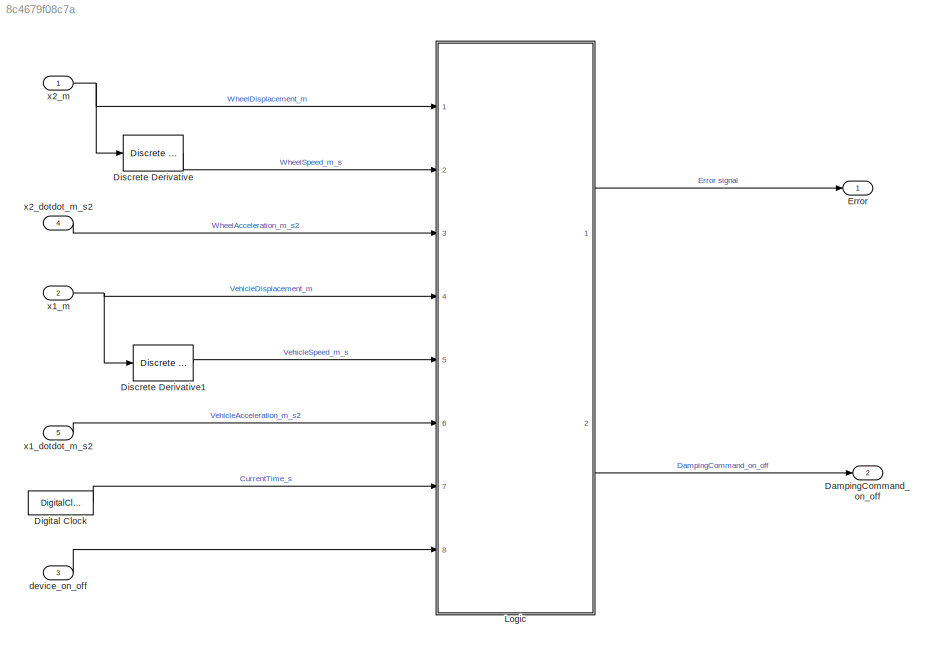
MODEL slx_8c4679f08c7a
KIND model
CONFIG AbsTol = auto
CONFIG EnableMultiTasking = off
CONFIG FixedStep = 1/1000
CONFIG MaxStep = auto
CONFIG MinStep = auto
CONFIG RelTol = 1e-3
CONFIG SampleTimeConstraint = Unconstrained
CONFIG SolverName = FixedStepAuto
CONFIG StartTime = 0.0
CONFIG StopTime = inf
BLOCK [Outport] DampingCommand_on_off
  OutDataTypeStr = int8
  Port = 2
BLOCK [DigitalClock] Digital Clock
  SampleTime = 1/100
BLOCK [Reference] Discrete Derivative  REF=simulink/Discrete/Discrete Derivative
  Ports = [1, 1]
  SourceBlock = simulink/Discrete/Discrete Derivative
  SourceProductBaseCode = SL
  SourceType = Discrete Derivative
BLOCK [Reference] Discrete Derivative1  REF=simulink/Discrete/Discrete Derivative
  Ports = [1, 1]
  SourceBlock = simulink/Discrete/Discrete Derivative
  SourceProductBaseCode = SL
  SourceType = Discrete Derivative
BLOCK [Outport] Error
  OutDataTypeStr = double
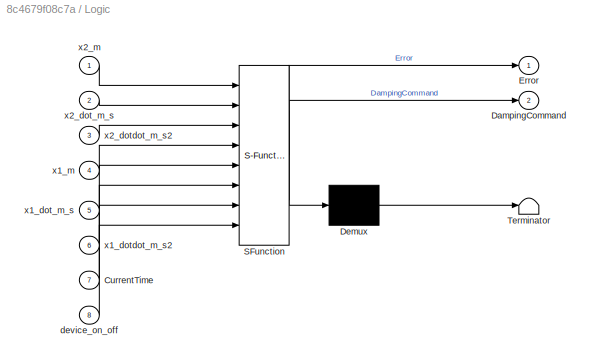
BLOCK [SubSystem] Logic
  ErrorFcn = Stateflow.Translate.translate
  PermitHierarchicalResolution = ExplicitOnly
  Ports = [8, 2]
  RequestExecContextInheritance = off
  SFBlockType = Chart
  TreatAsAtomicUnit = on
BLOCK [Demux] Logic/ Demux 
  Outputs = 1
  Ports = [1, 1]
BLOCK [S-Function] Logic/ SFunction 
  EnableBusSupport = on
  FunctionName = sf_sfun
  PortCounts = [8 3]
  Ports = [8, 3]
  SFcnIsStateOwnerBlock = off
  SFunctionDeploymentMode = off
  Tag = Stateflow S-Function 3
BLOCK [Terminator] Logic/ Terminator 
BLOCK [Inport] Logic/CurrentTime
  Port = 7
BLOCK [Outport] Logic/DampingCommand
  Port = 2
BLOCK [Outport] Logic/Error
BLOCK [Inport] Logic/device_on_off
  Port = 8
BLOCK [Inport] Logic/x1_dot_m_s
  Port = 5
BLOCK [Inport] Logic/x1_dotdot_m_s2
  Port = 6
BLOCK [Inport] Logic/x1_m
  Port = 4
BLOCK [Inport] Logic/x2_dot_m_s
  Port = 2
BLOCK [Inport] Logic/x2_dotdot_m_s2
  Port = 3
BLOCK [Inport] Logic/x2_m
BLOCK [Inport] device_on_off
  Port = 3
BLOCK [Inport] x1_dotdot_m_s2
  OutDataTypeStr = double
  Port = 5
BLOCK [Inport] x1_m
  Port = 2
BLOCK [Inport] x2_dotdot_m_s2
  OutDataTypeStr = double
  Port = 4
BLOCK [Inport] x2_m
  OutDataTypeStr = double
LINE Digital Clock:1 -> Logic:7
LINE Discrete Derivative1:1 -> Logic:5
LINE Discrete Derivative:1 -> Logic:2
LINE Logic:1 -> Error:1
LINE Logic:2 -> DampingCommand_on_off:1
LINE device_on_off:1 -> Logic:8
LINE x1_dotdot_m_s2:1 -> Logic:6
NET x1_m:1 -> Discrete Derivative1:1, Logic:4
LINE x2_dotdot_m_s2:1 -> Logic:3
NET x2_m:1 -> Discrete Derivative:1, Logic:1
note: NET lines group one-source signal fan-out (src -> all destinations, sorted); 1:1 wires keep LINE
CHART Logic states=12 transitions=11
  STATE_LABEL 'Device'
  STATE_LABEL 'DeviceOff\nentry:\nError = 0;\nDampingCommand=0;\n'
  STATE_LABEL 'DeviceOn\nduring:\nDecisionLogic();\n'
  STATE_LABEL 'Logic'
  STATE_LABEL 'ControlLogic'
  STATE_LABEL 'HighDamping\nentry:\nDampingCommand=1;'
  STATE_LABEL 'LowDamping\nentry:\nDampingCommand=0;'
  STATE_LABEL '[DampingStatus == "HiDamping"]'
  STATE_LABEL '[DampingStatus == "LoDamping"]'
  STATE_LABEL '{send(EStop,Warning)}'
  STATE_LABEL '[CheckFaultSystem()]'
  STATE_LABEL 'Warning'
  STATE_LABEL 'Running\n'
  STATE_LABEL 'Stop\nentry:\nError=1;\nDampingCommand=1;\n'
  STATE_LABEL 'EStop'
  STATE_LABEL 'DecisionLogic'
  STATE_LABEL 'SCRIPT:\nfunction DecisionLogic\n\naVarTruthTableCondition_1 = false;\naVarTruthTableCondition_2 = false;\n\n\n% High damping required\n\naVarTruthTableCondition_1 = logical((x1_dot_m_s-x2_dot_m_s)*x1_dot_m_s>=0 && Error<1);\n\n% Low damping required\n\naVarTruthTableCondition_2 = logical((x1_dot_m_s-x2_dot_m_s)*x1_dot_m_s<0 && Error<1);\n\nif (aVarTruthTableCondition_1)\n    aFcnTruthTableAction_1();\nelseif (aVa...<+334ch>'
  STATE_LABEL 'flag = CheckFaultSystem'
  STATE_LABEL 'SCRIPT:\nfunction flag = CheckFaultSystem\npersistent tol old_x1_dotdot_m_s2 old_x1_m old_x2_m old_x2_dotdot_m_s2 timeChange Error_flag\n\nif isempty(tol)\n    tol = 1e-8;\nend\n\nif isempty(Error_flag)\n    Error_flag = 0;\nend\n\nif isempty(old_x2_dotdot_m_s2)\n    old_x2_dotdot_m_s2 = x2_dotdot_m_s2;\nend\n\nif isempty(old_x2_m)\n    old_x2_m = x2_m;\nend\n\nif isempty(old_x1_dotdot_m_s2)\n    old_x1_dotdot_m_s2 = ...<+644ch>'
  STATE_LABEL '[device_on_off==0]'
  STATE_LABEL '[device_on_off==1]'
  STATE_LABEL 'DeviceOff\nentry:\nError = 0;\nDampingCommand=0;\n'
  STATE_LABEL 'DeviceOn\nduring:\nDecisionLogic();\n'
  STATE_LABEL 'Logic'
  STATE_LABEL 'ControlLogic'
  STATE_LABEL 'HighDamping\nentry:\nDampingCommand=1;'
  STATE_LABEL 'LowDamping\nentry:\nDampingCommand=0;'
  STATE_LABEL '[DampingStatus == "HiDamping"]'
  STATE_LABEL '[DampingStatus == "LoDamping"]'
  STATE_LABEL '{send(EStop,Warning)}'
  STATE_LABEL '[CheckFaultSystem()]'
  STATE_LABEL 'Warning'
  STATE_LABEL 'Running\n'
  STATE_LABEL 'Stop\nentry:\nError=1;\nDampingCommand=1;\n'
  STATE_LABEL 'EStop'
  STATE_LABEL 'DecisionLogic'
  STATE_LABEL 'SCRIPT:\nfunction DecisionLogic\n\naVarTruthTableCondition_1 = false;\naVarTruthTableCondition_2 = false;\n\n\n% High damping required\n\naVarTruthTableCondition_1 = logical((x1_dot_m_s-x2_dot_m_s)*x1_dot_m_s>=0 && Error<1);\n\n% Low damping required\n\naVarTruthTableCondition_2 = logical((x1_dot_m_s-x2_dot_m_s)*x1_dot_m_s<0 && Error<1);\n\nif (aVarTruthTableCondition_1)\n    aFcnTruthTableAction_1();\nelseif (aVa...<+334ch>'
  STATE_LABEL 'flag = CheckFaultSystem'
  STATE_LABEL 'SCRIPT:\nfunction flag = CheckFaultSystem\npersistent tol old_x1_dotdot_m_s2 old_x1_m old_x2_m old_x2_dotdot_m_s2 timeChange Error_flag\n\nif isempty(tol)\n    tol = 1e-8;\nend\n\nif isempty(Error_flag)\n    Error_flag = 0;\nend\n\nif isempty(old_x2_dotdot_m_s2)\n    old_x2_dotdot_m_s2 = x2_dotdot_m_s2;\nend\n\nif isempty(old_x2_m)\n    old_x2_m = x2_m;\nend\n\nif isempty(old_x1_dotdot_m_s2)\n    old_x1_dotdot_m_s2 = ...<+644ch>'
  STATE_LABEL 'Logic'
CHART  states=0 transitions=0
